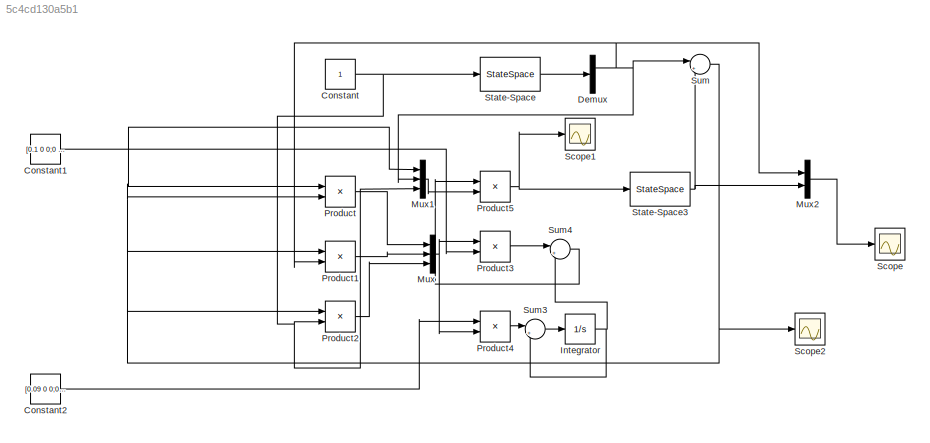
MODEL slx_5c4cd130a5b1
KIND model
BLOCK [Constant] Constant
BLOCK [Constant] Constant1
  Value = [0.1 0 0;0 0.2 0;0 0 0.1]*0.08
BLOCK [Constant] Constant2
  Value = [0.09 0 0;0 0.18 0;0 0 0.09]*0.001
BLOCK [Demux] Demux
  DisplayOption = bar
  Outputs = 2
  Ports = [1, 2]
BLOCK [Integrator] Integrator
  InitialCondition = [0.01 0.0208 1e-6]
  Ports = [1, 1]
BLOCK [Mux] Mux
  DisplayOption = bar
  Inputs = 3
  Ports = [3, 1]
BLOCK [Mux] Mux1
  DisplayOption = bar
  Inputs = 3
  Ports = [3, 1]
BLOCK [Mux] Mux2
  DisplayOption = bar
  Inputs = 2
  Ports = [2, 1]
BLOCK [Product] Product
  InputSameDT = off
  OutDataTypeStr = Inherit: Inherit via internal rule
  Ports = [2, 1]
  RndMeth = Floor
  SaturateOnIntegerOverflow = off
BLOCK [Product] Product1
  InputSameDT = off
  OutDataTypeStr = Inherit: Inherit via internal rule
  Ports = [2, 1]
  RndMeth = Floor
  SaturateOnIntegerOverflow = off
BLOCK [Product] Product2
  InputSameDT = off
  OutDataTypeStr = Inherit: Inherit via internal rule
  Ports = [2, 1]
  RndMeth = Floor
  SaturateOnIntegerOverflow = off
BLOCK [Product] Product3
  InputSameDT = off
  Multiplication = Matrix(*)
  OutDataTypeStr = Inherit: Inherit via internal rule
  Ports = [2, 1]
  RndMeth = Floor
  SaturateOnIntegerOverflow = off
BLOCK [Product] Product4
  InputSameDT = off
  Multiplication = Matrix(*)
  OutDataTypeStr = Inherit: Inherit via internal rule
  Ports = [2, 1]
  RndMeth = Floor
  SaturateOnIntegerOverflow = off
BLOCK [Product] Product5
  InputSameDT = off
  Multiplication = Matrix(*)
  OutDataTypeStr = Inherit: Inherit via internal rule
  Ports = [2, 1]
  RndMeth = Floor
  SaturateOnIntegerOverflow = off
BLOCK [Scope] Scope
  Floating = off
  LegendLocations = 0.90396     0.91029    0.076875    0.044444
  MaxDataPoints = 100000
  NumInputPorts = 1
  Ports = [1]
  SampleTime = 0
  SaveName = sd
  SaveToWorkspace = on
  ShowLegends = on
  TimeRange = 4
  YMax = 45
  YMin = -40
  ZoomMode = yonly
BLOCK [Scope] Scope1
  Floating = off
  NumInputPorts = 1
  Ports = [1]
  SampleTime = 0
  SaveName = Up
  SaveToWorkspace = on
  ShowLegends = off
  TimeRange = 10
  YMax = 3e+12
  YMin = -3e+12
BLOCK [Scope] Scope2
  Floating = off
  LegendLocations = 0.93177     0.92901    0.049375    0.025103
  MaxDataPoints = 50000
  NumInputPorts = 1
  Ports = [1]
  SampleTime = 0
  SaveName = E
  SaveToWorkspace = on
  ShowLegends = on
  TimeRange = 4
  YMax = 45
  YMin = -40
  ZoomMode = yonly
BLOCK [StateSpace] State-Space
  A = [-1 0;0 -1]
  B = [1;1]
  C = eye(2)
  D = [0;0]
  X0 = [2 0]
BLOCK [StateSpace] State-Space3
  A = [0 1;-2084.1 0]
  B = [0;0.9999]*1e5
  C = [1 0]
  D = 0
BLOCK [Sum] Sum
  IconShape = round
  InputSameDT = off
  Inputs = |+-
  OutDataTypeStr = Inherit: Inherit via internal rule
  Ports = [2, 1]
  SaturateOnIntegerOverflow = off
BLOCK [Sum] Sum3
  IconShape = round
  InputSameDT = off
  Inputs = |+-
  OutDataTypeStr = Inherit: Inherit via internal rule
  Ports = [2, 1]
  SaturateOnIntegerOverflow = off
BLOCK [Sum] Sum4
  IconShape = round
  InputSameDT = off
  Inputs = |++
  OutDataTypeStr = Inherit: Inherit via internal rule
  Ports = [2, 1]
  SaturateOnIntegerOverflow = off
LINE Constant1:1 -> Product3:2
LINE Constant2:1 -> Product4:1
NET Constant:1 -> Mux1:3, Product2:2, State-Space:1
NET Demux:1 -> Mux1:2, Mux2:1, Product1:2, Sum:1
NET Integrator:1 -> Sum3:2, Sum4:2
LINE Mux1:1 -> Product5:2
LINE Mux2:1 -> Scope:1
NET Mux:1 -> Product3:1, Product4:2
LINE Product1:1 -> Mux:2
LINE Product2:1 -> Mux:3
LINE Product3:1 -> Sum4:1
LINE Product4:1 -> Sum3:1
NET Product5:1 -> Scope1:1, State-Space3:1
LINE Product:1 -> Mux:1
NET State-Space3:1 -> Mux2:2, Sum:2
LINE State-Space:1 -> Demux:1
LINE Sum3:1 -> Integrator:1
LINE Sum4:1 -> Product5:1
NET Sum:1 -> Mux1:1, Product1:1, Product2:1, Product:1, Product:2, Scope2:1
note: NET lines group one-source signal fan-out (src -> all destinations, sorted); 1:1 wires keep LINE
